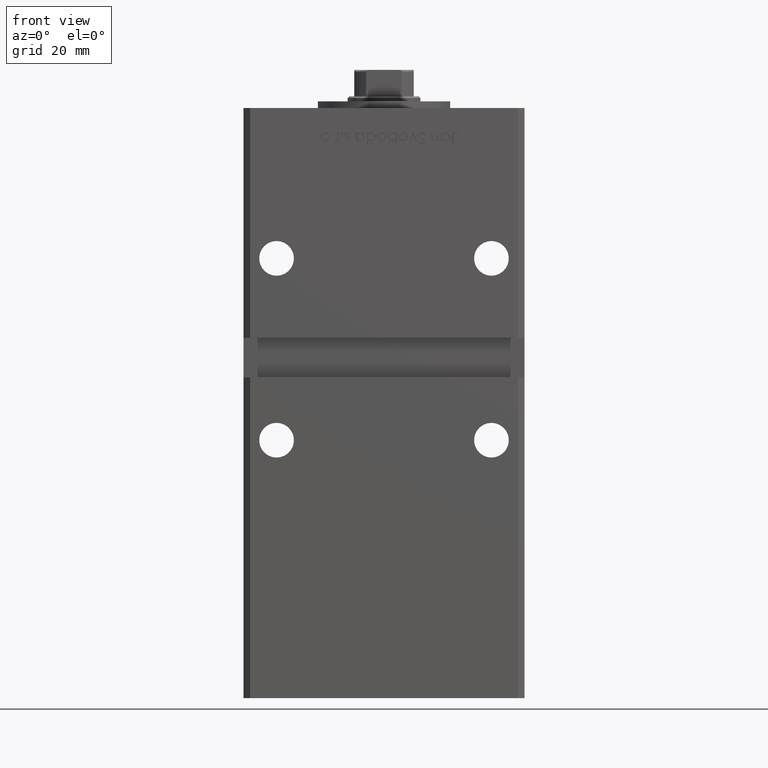
[diagram: clean part render]
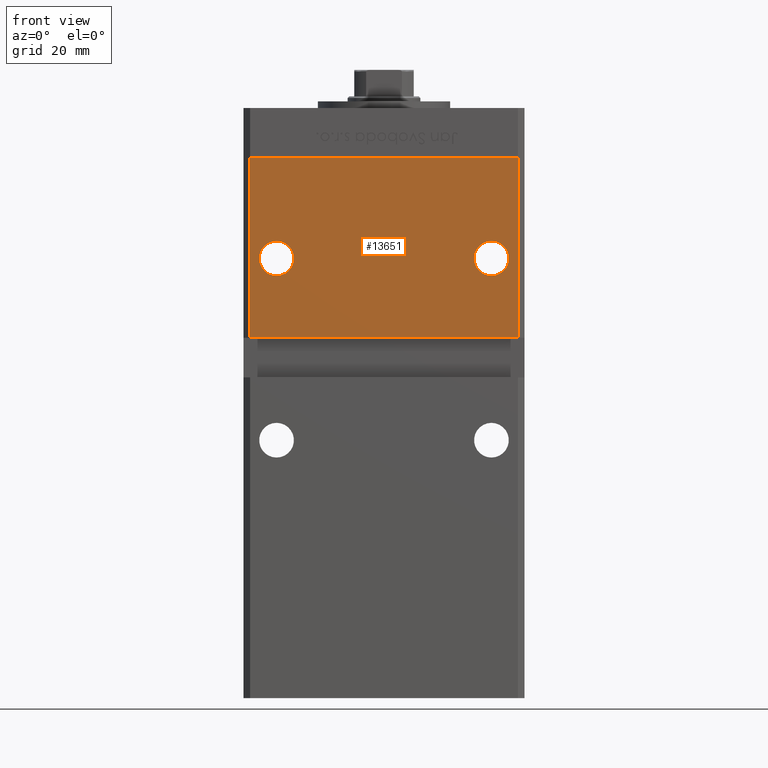
[diagram: same view with one face highlighted and labeled with its STEP entity id]
A machine part, front view. The second image highlights one B-rep face of the part: STEP entity #13651.
In plain terms, the highlighted planar face has unit normal (0, 1, 0).
Its self-contained STEP definition (entity closure, byte-faithful):
#340 = VECTOR ( 'NONE', #52577, 1000.000000000000000 ) ;
#396 = VERTEX_POINT ( 'NONE', #15137 ) ;
#770 = AXIS2_PLACEMENT_3D ( 'NONE', #18380, #18641, #51461 ) ;
#999 = ORIENTED_EDGE ( 'NONE', *, *, #20532, .F. ) ;
#1115 = DIRECTION ( 'NONE',  ( 0.000000000000000000, 1.000000000000000000, 0.000000000000000000 ) ) ;
#1541 = CARTESIAN_POINT ( 'NONE',  ( 32.50000000000000000, -37.50000000000000711, 112.7499999999999858 ) ) ;
#1868 = CARTESIAN_POINT ( 'NONE',  ( -40.49999999999998579, -37.50000000000000711, 148.5000000000000000 ) ) ;
#2966 = DIRECTION ( 'NONE',  ( 0.000000000000000000, 1.000000000000000000, 0.000000000000000000 ) ) ;
#3927 = FACE_OUTER_BOUND ( 'NONE', #51941, .T. ) ;
#4649 = VERTEX_POINT ( 'NONE', #19099 ) ;
#6066 = AXIS2_PLACEMENT_3D ( 'NONE', #36002, #2966, #39241 ) ;
#7693 = DIRECTION ( 'NONE',  ( 0.000000000000000000, -0.000000000000000000, 1.000000000000000000 ) ) ;
#8144 = EDGE_CURVE ( 'NONE', #19039, #27152, #12209, .T. ) ;
#9433 = DIRECTION ( 'NONE',  ( 0.000000000000000000, 0.000000000000000000, 1.000000000000000000 ) ) ;
#9653 = CARTESIAN_POINT ( 'NONE',  ( -40.49999999999998579, -37.50000000000000711, 94.00000000000000000 ) ) ;
#10262 = VERTEX_POINT ( 'NONE', #47014 ) ;
#12209 = LINE ( 'NONE', #36141, #18188 ) ;
#13651 = ADVANCED_FACE ( 'NONE', ( #24866, #27855, #3927 ), #15999, .F. ) ;
#14744 = ORIENTED_EDGE ( 'NONE', *, *, #47316, .T. ) ;
#15137 = CARTESIAN_POINT ( 'NONE',  ( -32.50000000000000000, -37.50000000000000711, 112.7499999999999858 ) ) ;
#15754 = CARTESIAN_POINT ( 'NONE',  ( -40.49999999999998579, -37.50000000000000711, 148.5000000000000000 ) ) ;
#15925 = CARTESIAN_POINT ( 'NONE',  ( 32.50000000000000000, -37.50000000000000711, 123.2500000000000000 ) ) ;
#15999 = PLANE ( 'NONE',  #39804 ) ;
#17856 = CIRCLE ( 'NONE', #51344, 5.250000000000004441 ) ;
#17958 = ORIENTED_EDGE ( 'NONE', *, *, #44245, .T. ) ;
#18188 = VECTOR ( 'NONE', #19209, 1000.000000000000000 ) ;
#18380 = CARTESIAN_POINT ( 'NONE',  ( -32.50000000000000000, -37.50000000000000711, 118.0000000000000000 ) ) ;
#18399 = CARTESIAN_POINT ( 'NONE',  ( -42.49999999999998579, -37.50000000000000711, 94.00000000000000000 ) ) ;
#18435 = ORIENTED_EDGE ( 'NONE', *, *, #49878, .F. ) ;
#18641 = DIRECTION ( 'NONE',  ( 0.000000000000000000, 1.000000000000000000, 0.000000000000000000 ) ) ;
#18906 = CIRCLE ( 'NONE', #6066, 5.250000000000004441 ) ;
#19039 = VERTEX_POINT ( 'NONE', #1868 ) ;
#19099 = CARTESIAN_POINT ( 'NONE',  ( 40.49999999999998579, -37.50000000000000711, 148.5000000000000000 ) ) ;
#19168 = VERTEX_POINT ( 'NONE', #1541 ) ;
#19180 = VERTEX_POINT ( 'NONE', #46951 ) ;
#19209 = DIRECTION ( 'NONE',  ( -0.000000000000000000, -0.000000000000000000, -1.000000000000000000 ) ) ;
#19235 = CARTESIAN_POINT ( 'NONE',  ( 32.50000000000000000, -37.50000000000000711, 118.0000000000000000 ) ) ;
#19252 = EDGE_CURVE ( 'NONE', #19039, #4649, #52833, .T. ) ;
#19255 = VECTOR ( 'NONE', #34808, 1000.000000000000000 ) ;
#19500 = ORIENTED_EDGE ( 'NONE', *, *, #21725, .T. ) ;
#19816 = VECTOR ( 'NONE', #20207, 1000.000000000000000 ) ;
#20207 = DIRECTION ( 'NONE',  ( -0.000000000000000000, -0.000000000000000000, -1.000000000000000000 ) ) ;
#20532 = EDGE_CURVE ( 'NONE', #19180, #27152, #22956, .T. ) ;
#21725 = EDGE_CURVE ( 'NONE', #19168, #51004, #30462, .T. ) ;
#22956 = LINE ( 'NONE', #18399, #19255 ) ;
#22995 = DIRECTION ( 'NONE',  ( 0.000000000000000000, 0.000000000000000000, 1.000000000000000000 ) ) ;
#24450 = ORIENTED_EDGE ( 'NONE', *, *, #35450, .T. ) ;
#24866 = FACE_BOUND ( 'NONE', #27961, .T. ) ;
#27152 = VERTEX_POINT ( 'NONE', #9653 ) ;
#27830 = DIRECTION ( 'NONE',  ( 0.000000000000000000, 1.000000000000000000, 0.000000000000000000 ) ) ;
#27855 = FACE_BOUND ( 'NONE', #33947, .T. ) ;
#27961 = EDGE_LOOP ( 'NONE', ( #24450, #19500 ) ) ;
#30462 = CIRCLE ( 'NONE', #49336, 5.250000000000004441 ) ;
#31342 = CARTESIAN_POINT ( 'NONE',  ( 40.49999999999998579, -37.50000000000000711, 148.5000000000000000 ) ) ;
#33947 = EDGE_LOOP ( 'NONE', ( #14744, #17958 ) ) ;
#34160 = CARTESIAN_POINT ( 'NONE',  ( 32.50000000000000000, -37.50000000000000711, 118.0000000000000000 ) ) ;
#34272 = CIRCLE ( 'NONE', #770, 5.250000000000004441 ) ;
#34808 = DIRECTION ( 'NONE',  ( -1.000000000000000000, -0.000000000000000000, -0.000000000000000000 ) ) ;
#35450 = EDGE_CURVE ( 'NONE', #51004, #19168, #17856, .T. ) ;
#36002 = CARTESIAN_POINT ( 'NONE',  ( -32.50000000000000000, -37.50000000000000711, 118.0000000000000000 ) ) ;
#36141 = CARTESIAN_POINT ( 'NONE',  ( -40.49999999999998579, -37.50000000000000711, 148.5000000000000000 ) ) ;
#39241 = DIRECTION ( 'NONE',  ( 0.000000000000000000, 0.000000000000000000, 1.000000000000000000 ) ) ;
#39423 = LINE ( 'NONE', #31342, #19816 ) ;
#39547 = ORIENTED_EDGE ( 'NONE', *, *, #8144, .T. ) ;
#39804 = AXIS2_PLACEMENT_3D ( 'NONE', #15754, #44520, #7693 ) ;
#44245 = EDGE_CURVE ( 'NONE', #396, #10262, #34272, .T. ) ;
#44520 = DIRECTION ( 'NONE',  ( 0.000000000000000000, 1.000000000000000000, 0.000000000000000000 ) ) ;
#46951 = CARTESIAN_POINT ( 'NONE',  ( 40.49999999999997868, -37.50000000000000711, 94.00000000000000000 ) ) ;
#47014 = CARTESIAN_POINT ( 'NONE',  ( -32.50000000000000000, -37.50000000000000711, 123.2500000000000000 ) ) ;
#47225 = ORIENTED_EDGE ( 'NONE', *, *, #19252, .F. ) ;
#47316 = EDGE_CURVE ( 'NONE', #10262, #396, #18906, .T. ) ;
#49336 = AXIS2_PLACEMENT_3D ( 'NONE', #34160, #1115, #9433 ) ;
#49878 = EDGE_CURVE ( 'NONE', #4649, #19180, #39423, .T. ) ;
#51004 = VERTEX_POINT ( 'NONE', #15925 ) ;
#51344 = AXIS2_PLACEMENT_3D ( 'NONE', #19235, #27830, #22995 ) ;
#51461 = DIRECTION ( 'NONE',  ( 0.000000000000000000, 0.000000000000000000, 1.000000000000000000 ) ) ;
#51793 = CARTESIAN_POINT ( 'NONE',  ( -40.49999999999998579, -37.50000000000000711, 148.5000000000000000 ) ) ;
#51941 = EDGE_LOOP ( 'NONE', ( #39547, #999, #18435, #47225 ) ) ;
#52577 = DIRECTION ( 'NONE',  ( 1.000000000000000000, 0.000000000000000000, 0.000000000000000000 ) ) ;
#52833 = LINE ( 'NONE', #51793, #340 ) ;